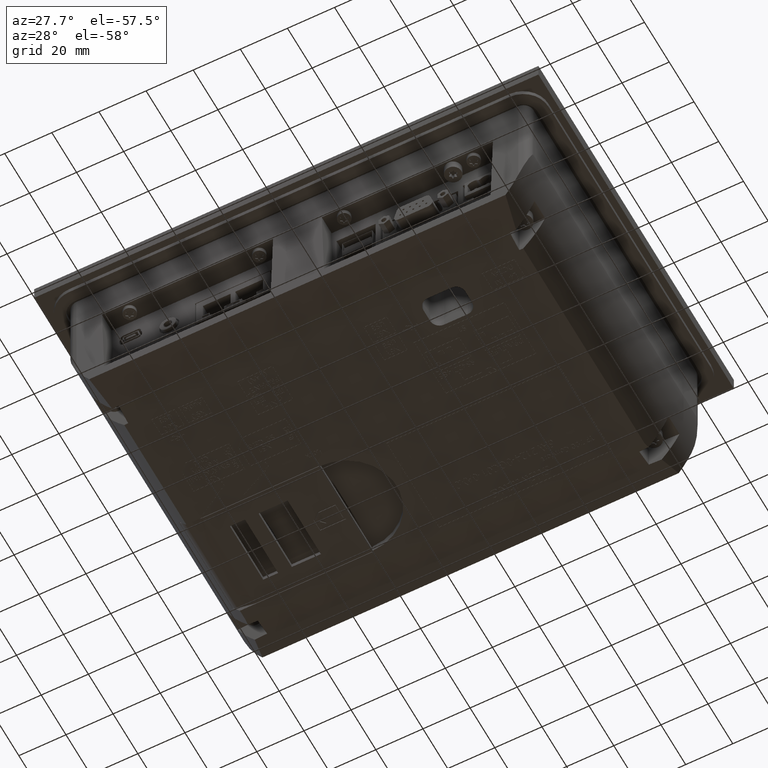
[diagram: clean part render]
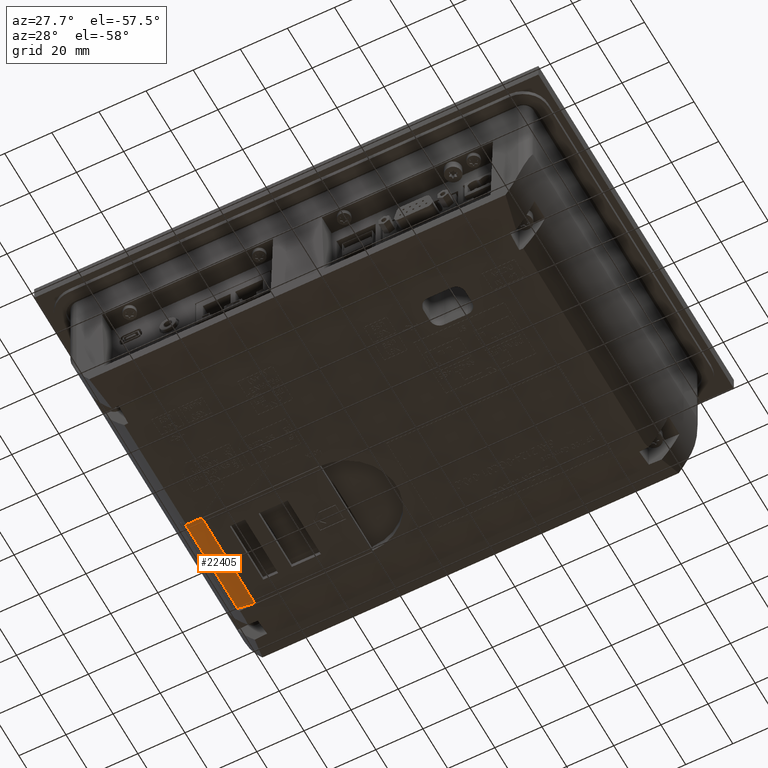
[diagram: same view with one face highlighted and labeled with its STEP entity id]
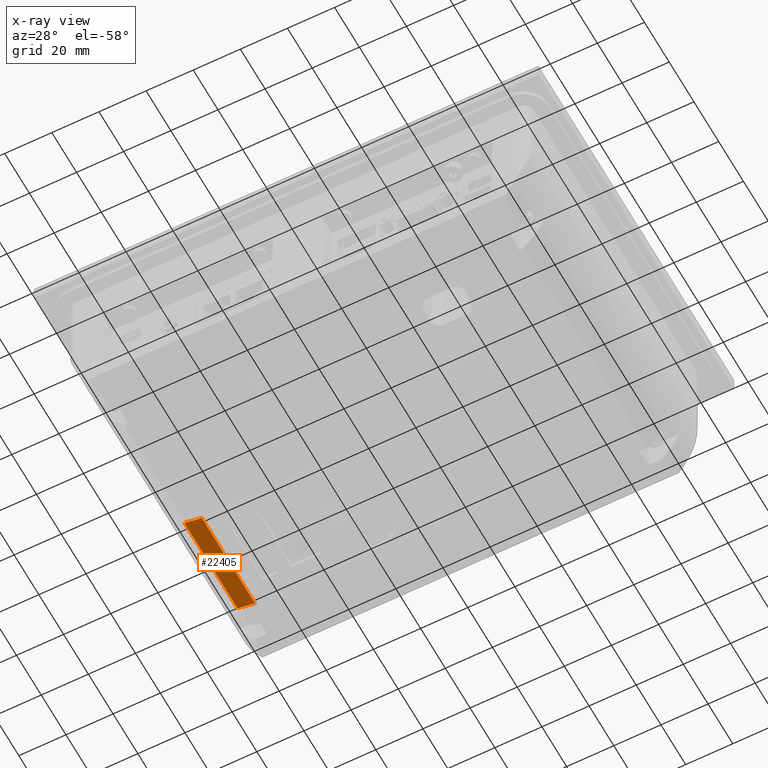
[diagram: x-ray of the same camera — body ghosted, the highlighted face saturated]
A machine part, auxiliary view. The second image highlights one B-rep face of the part: STEP entity #22405.
The next image is the same camera in x-ray: the body ghosted, the highlighted face saturated — about 0% of this face is hidden behind the body in this view.
In plain terms, the highlighted face is a SurfaceOfExtrusion surface.
Its self-contained STEP definition (entity closure, byte-faithful):
#417=SURFACE_OF_LINEAR_EXTRUSION('',#1314,#12317);
#1312=B_SPLINE_CURVE_WITH_KNOTS('',3,(#91587,#91588,#91589,#91590,#91591,
#91592,#91593),.UNSPECIFIED.,.F.,.F.,(4,1,1,1,4),(0.,0.25,0.5,0.75,1.),.UNSPECIFIED.);
#1313=B_SPLINE_CURVE_WITH_KNOTS('',3,(#91597,#91598,#91599,#91600,#91601,
#91602,#91603),.UNSPECIFIED.,.F.,.F.,(4,1,1,1,4),(0.,0.25,0.5,0.75,1.),.UNSPECIFIED.);
#1314=B_SPLINE_CURVE_WITH_KNOTS('',3,(#91604,#91605,#91606,#91607,#91608,
#91609,#91610),.UNSPECIFIED.,.F.,.F.,(4,1,1,1,4),(0.,0.25,0.5,0.75,1.),.UNSPECIFIED.);
#6661=LINE('',#91571,#12314);
#6662=LINE('',#91595,#12316);
#12314=VECTOR('',#64315,1.);
#12316=VECTOR('',#64317,1.);
#12317=VECTOR('',#64318,1.);
#19682=FACE_OUTER_BOUND('',#26165,.T.);
#22405=ADVANCED_FACE('',(#19682),#417,.F.);
#26165=EDGE_LOOP('',(#38896,#38897,#38898,#38899));
#38896=ORIENTED_EDGE('',*,*,#49720,.T.);
#38897=ORIENTED_EDGE('',*,*,#49721,.F.);
#38898=ORIENTED_EDGE('',*,*,#49722,.F.);
#38899=ORIENTED_EDGE('',*,*,#49718,.T.);
#43325=VERTEX_POINT('',#91570);
#43326=VERTEX_POINT('',#91572);
#43327=VERTEX_POINT('',#91594);
#43328=VERTEX_POINT('',#91596);
#49718=EDGE_CURVE('',#43326,#43325,#6661,.T.);
#49720=EDGE_CURVE('',#43325,#43327,#1312,.T.);
#49721=EDGE_CURVE('',#43328,#43327,#6662,.T.);
#49722=EDGE_CURVE('',#43326,#43328,#1313,.T.);
#64315=DIRECTION('',(0.,-1.,0.));
#64317=DIRECTION('',(0.,-1.,0.));
#64318=DIRECTION('',(0.,-1.,0.));
#91570=CARTESIAN_POINT('',(-49.96836458863,0.,-1.78879772103899));
#91571=CARTESIAN_POINT('',(-49.96836458863,42.902,-1.78879772103899));
#91572=CARTESIAN_POINT('',(-49.96836458863,42.902,-1.78879772103899));
#91587=CARTESIAN_POINT('',(-49.96836458863,0.,-1.78879772103899));
#91588=CARTESIAN_POINT('',(-50.59919906942,0.,-1.66562522362988));
#91589=CARTESIAN_POINT('',(-51.85691567656,0.,-1.39900415919339));
#91590=CARTESIAN_POINT('',(-53.72966336507,0.,-0.938659890681981));
#91591=CARTESIAN_POINT('',(-55.58665330099,0.,-0.418378311061979));
#91592=CARTESIAN_POINT('',(-56.81286335771,0.,-0.0319231185369889));
#91593=CARTESIAN_POINT('',(-57.42270067305,0.,0.17110274345801));
#91594=CARTESIAN_POINT('',(-57.42270067305,0.,0.17110274345801));
#91595=CARTESIAN_POINT('',(-57.42270067305,42.902,0.17110274345801));
#91596=CARTESIAN_POINT('',(-57.42270067305,42.902,0.17110274345801));
#91597=CARTESIAN_POINT('',(-49.96836458863,42.902,-1.78879772103899));
#91598=CARTESIAN_POINT('',(-50.59919906942,42.902,-1.66562522362988));
#91599=CARTESIAN_POINT('',(-51.85691567656,42.902,-1.39900415919339));
#91600=CARTESIAN_POINT('',(-53.72966336507,42.902,-0.938659890681981));
#91601=CARTESIAN_POINT('',(-55.58665330099,42.902,-0.418378311061979));
#91602=CARTESIAN_POINT('',(-56.81286335771,42.902,-0.0319231185369889));
#91603=CARTESIAN_POINT('',(-57.42270067305,42.902,0.17110274345801));
#91604=CARTESIAN_POINT('',(-49.96836458863,42.902,-1.78879772103899));
#91605=CARTESIAN_POINT('',(-50.59919906942,42.902,-1.66562522362988));
#91606=CARTESIAN_POINT('',(-51.85691567656,42.902,-1.39900415919339));
#91607=CARTESIAN_POINT('',(-53.72966336507,42.902,-0.938659890681981));
#91608=CARTESIAN_POINT('',(-55.58665330099,42.902,-0.418378311061979));
#91609=CARTESIAN_POINT('',(-56.81286335771,42.902,-0.0319231185369889));
#91610=CARTESIAN_POINT('',(-57.42270067305,42.902,0.17110274345801));